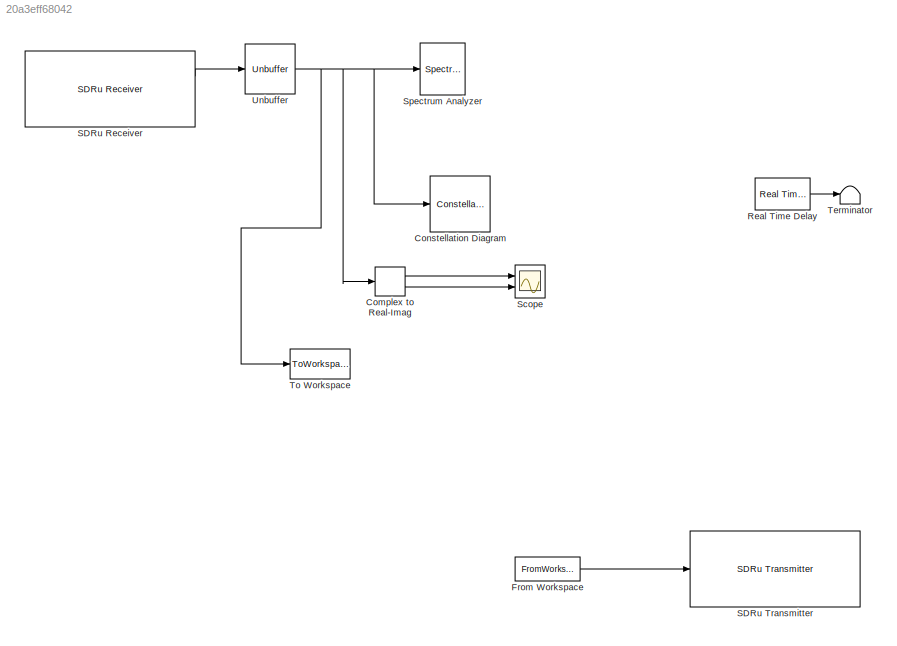
MODEL slx_20a3eff68042
KIND model
BLOCK [ComplexToRealImag] Complex to Real-Imag
  Ports = [1, 2]
BLOCK [ConstellationDiagram] Constellation Diagram
  Commented = on
  Ports = [1]
  ScopeSpecificationString = comm.scopes.ConstellationDiagramBlockCfg('CurrentConfiguration', extmgr.ConfigurationSet(extmgr.Configuration('Core','General UI',true),extmgr.Configuration('Core','Source UI',true),extmgr.Configuration('Sources','WiredSimulink',true),extmgr.Configuration('Sources','Simulink',false),extmgr.Configuration('Sources','File',false),extmgr.Configuration('Sources','Workspace',false),extmgr.Configuration(...<+1743ch>
BLOCK [FromWorkspace] From Workspace
  Commented = on
  SampleTime = 0
  VariableName = buffer
  ZeroCross = on
BLOCK [Reference] Real Time Delay  REF=siglabs_lib/Real Time Delay
  Ports = [0, 1]
  SourceBlock = siglabs_lib/Real Time Delay
  TimeDelay = 2
BLOCK [Reference] SDRu Receiver  REF=commsdrhw_v2/SDRu Receiver
  EnableBurstMode = off
  HOST_CONTROL_PORT = 0
  HOST_DATA_PORT = 0
  NumFramesInBurst = 1
  Ports = [0, 2]
  SourceBlock = commsdrhw_v2/SDRu Receiver
  SourceType = SDRu Receiver
  USRP2_CONTROL_PORT = 0
  USRP2_DATA_PORT = 0
  USRP2_IP = '192.168.10.2'
  USRP2_IP_NUM = [49 57 50 46 49 54 56 46 49 48 46 50]
  USRP_ID = '192.168.10.2'
  USRP_IP_X300 = '192.168.10.2'
  USRP_IP_X310 = '192.168.10.2'
  USRP_serialNumB200 = ''
  USRP_serialNumB210 = ''
  bufferMode = Continuous streaming
  centerFrequency = 915E6
  centerFrequencySrc = Dialog
  decimInterp = 512
  decimInterpSrc = Dialog
  frameLength = 1024
  gain = 32
  gainSrc = Dialog
  loOffset = 0
  loOffsetSrc = Dialog
  masterClkRateB200 = 32e6
  masterClkRateB210 = 32e6
  masterClkRateParam = 100e6
  masterClkRateX300 = 200e6
  masterClkRateX310 = 200e6
  outputDatatype = double
  overrunUnderrunPort = off
  platform = N200/N210/USRP2
  rxtx = rx
  sampleTime = 512/(1e8)
BLOCK [Reference] SDRu Transmitter  REF=commsdrhw_v2/SDRu Transmitter
  Commented = on
  EnableBurstMode = on
  HOST_CONTROL_PORT = 30001
  HOST_DATA_PORT = 30000
  NumFramesInBurst = 100
  Ports = [1]
  SourceBlock = commsdrhw_v2/SDRu Transmitter
  SourceType = SDRu Transmitter
  USRP2_CONTROL_PORT = 32768
  USRP2_DATA_PORT = 32769
  USRP2_IP = '192.168.10.2'
  USRP2_IP_NUM = [49 57 50 46 49 54 56 46 49 48 46 50]
  USRP_ID = '192.168.10.2'
  USRP_IP_X300 = '192.168.10.2'
  USRP_IP_X310 = '192.168.10.2'
  USRP_serialNumB200 = ''
  USRP_serialNumB210 = ''
  bufferMode = Guaranteed contiguous buffer
  centerFrequency = 915E6
  centerFrequencySrc = Dialog
  dboardInfo = dbid: 0\n          dbName: 'no db found'\n         freqMin: 0\n         freqMax: 0\n         gainMin: 0\n         gainMax: 0\n    gainStepSize: 0
  decimInterp = 512
  decimInterpSrc = Dialog
  frameLength = 362
  gain = 8
  gainSrc = Dialog
  loOffset = 0
  loOffsetSrc = Dialog
  masterClkRateB200 = 32e6
  masterClkRateB210 = 32e6
  masterClkRateParam = 100e6
  masterClkRateX300 = 200e6
  masterClkRateX310 = 200e6
  outputDatatype = int16
  overrunUnderrunPort = off
  platform = N200/N210/USRP2
  rxtx = tx
  sampleTime = 1
BLOCK [Scope] Scope
  Floating = off
  LimitDataPoints = off
  NumInputPorts = 2
  Ports = [2]
  ShowLegends = off
  TimeRange = 3
  YMax = 0.0005~0.0002
  YMin = -0.0005~-0.0002
BLOCK [SpectrumAnalyzer] Spectrum Analyzer
  Ports = [1]
  ScopeSpecificationString = spbscopes.SpectrumAnalyzerBlockCfg('CurrentConfiguration', extmgr.ConfigurationSet(extmgr.Configuration('Core','General UI',true),extmgr.Configuration('Core','Source UI',true),extmgr.Configuration('Sources','WiredSimulink',true),extmgr.Configuration('Visuals','Spectrum',true,'AxesProperties',struct('Color',[0 0 0],'XColor',[0.686274509803922 0.686274509803922 0.686274509803922],'YColor',[0.6862745...<+6100ch>
BLOCK [Terminator] Terminator
BLOCK [ToWorkspace] To Workspace
  Commented = on
  FixptAsFi = on
  MaxDataPoints = inf
  Ports = [1]
  SampleTime = -1
  Save2DSignal = 3-D array (concatenate along third dimension)
  SaveFormat = Timeseries
  VariableName = buffer
BLOCK [Unbuffer] Unbuffer
  Ports = [1, 1]
  SampleBasedProcessing = Same as frame based
LINE Complex to Real-Imag:1 -> Scope:1
LINE Complex to Real-Imag:2 -> Scope:2
LINE From Workspace:1 -> SDRu Transmitter:1
LINE Real Time Delay:1 -> Terminator:1
LINE SDRu Receiver:1 -> Unbuffer:1
NET Unbuffer:1 -> Complex to Real-Imag:1, Constellation Diagram:1, Spectrum Analyzer:1, To Workspace:1
note: NET lines group one-source signal fan-out (src -> all destinations, sorted); 1:1 wires keep LINE
